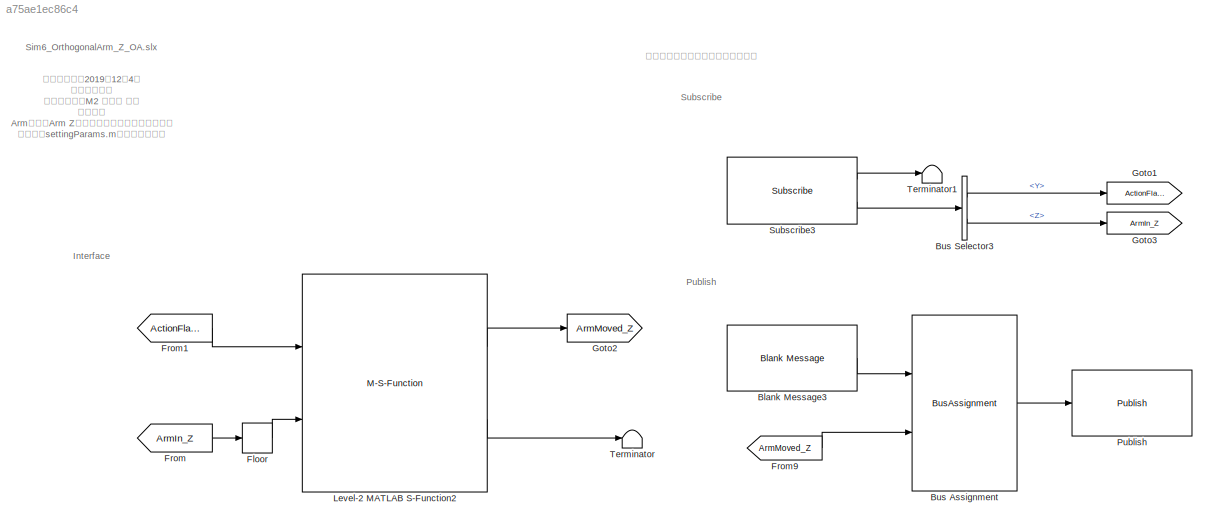
MODEL slx_a75ae1ec86c4
KIND model
CONFIG AbsTol = auto
CONFIG EnableMultiTasking = off
CONFIG FixedStep = auto
CONFIG InitFcn = run('settingParams.m')\n%GUI = evalin('base','GUI_handle');
CONFIG MaxStep = auto
CONFIG MinStep = auto
CONFIG RelTol = 1e-3
CONFIG SampleTimeConstraint = Unconstrained
CONFIG SolverName = VariableStepAuto
CONFIG StartTime = 0.0
CONFIG StopTime = Inf
BLOCK [Reference] Blank Message3  REF=robotlib/Blank Message
  Ports = [0, 1]
  SourceBlock = robotlib/Blank Message
  SourceProductBaseCode = RR
  SourceType = ROS Blank Message
BLOCK [BusAssignment] Bus Assignment
  AssignedSignals = Twist.Linear.X
  Ports = [2, 1]
BLOCK [BusSelector] Bus Selector3
  OutputSignals = Twist.Linear.Y,Twist.Linear.Z
  Ports = [1, 2]
BLOCK [Rounding] Floor
BLOCK [From] From
  GotoTag = ArmIn_Z
  TagVisibility = global
BLOCK [From] From1
  GotoTag = ActionFlag_Z
  TagVisibility = global
BLOCK [From] From9
  GotoTag = ArmMoved_Z
  TagVisibility = global
BLOCK [Goto] Goto1
  GotoTag = ActionFlag_Z
  TagVisibility = global
BLOCK [Goto] Goto2
  GotoTag = ArmMoved_Z
  TagVisibility = global
BLOCK [Goto] Goto3
  GotoTag = ArmIn_Z
  TagVisibility = global
BLOCK [M-S-Function] Level-2 MATLAB S-Function2
  FunctionName = l2_misumi_Z_ver2
  Parameters = comport, boundrate, initPos
  Ports = [2, 2]
BLOCK [Reference] Publish  REF=robotlib/Publish
  Ports = [1]
  SourceBlock = robotlib/Publish
  SourceProductBaseCode = RR
  SourceType = ROS Publish
BLOCK [Reference] Subscribe3  REF=robotlib/Subscribe
  Ports = [0, 2]
  SourceBlock = robotlib/Subscribe
  SourceProductBaseCode = RR
  SourceType = ROS Subscribe
BLOCK [Terminator] Terminator
BLOCK [Terminator] Terminator1
ANNOTATION (root): 初回作成日：2019年12月4日 最終更新日： 最終更新者：M2 奈須野 智弘 注意点： Arm（直交Arm Z軸）の制御を行うモデルです． 実行時にsettingParams.mを実行します． 実働時にはクライアントとして立ち上がるため，Supervisorと同じワークスペースを適用します． Setting Parameter： ArmInitPos
ANNOTATION (root): ※直交アーム用のプログラムです！
ANNOTATION (root): Interface
ANNOTATION (root): Publish
ANNOTATION (root): Sim6_OrthogonalArm_Z_OA.slx
ANNOTATION (root): Subscribe
LINE Blank Message3:1 -> Bus Assignment:1
LINE Bus Assignment:1 -> Publish:1
LINE Bus Selector3:1 -> Goto1:1
LINE Bus Selector3:2 -> Goto3:1
LINE Floor:1 -> Level-2 MATLAB S-Function2:2
LINE From1:1 -> Level-2 MATLAB S-Function2:1
LINE From9:1 -> Bus Assignment:2
LINE From:1 -> Floor:1
LINE Level-2 MATLAB S-Function2:1 -> Goto2:1
LINE Level-2 MATLAB S-Function2:2 -> Terminator:1
LINE Subscribe3:1 -> Terminator1:1
LINE Subscribe3:2 -> Bus Selector3:1
